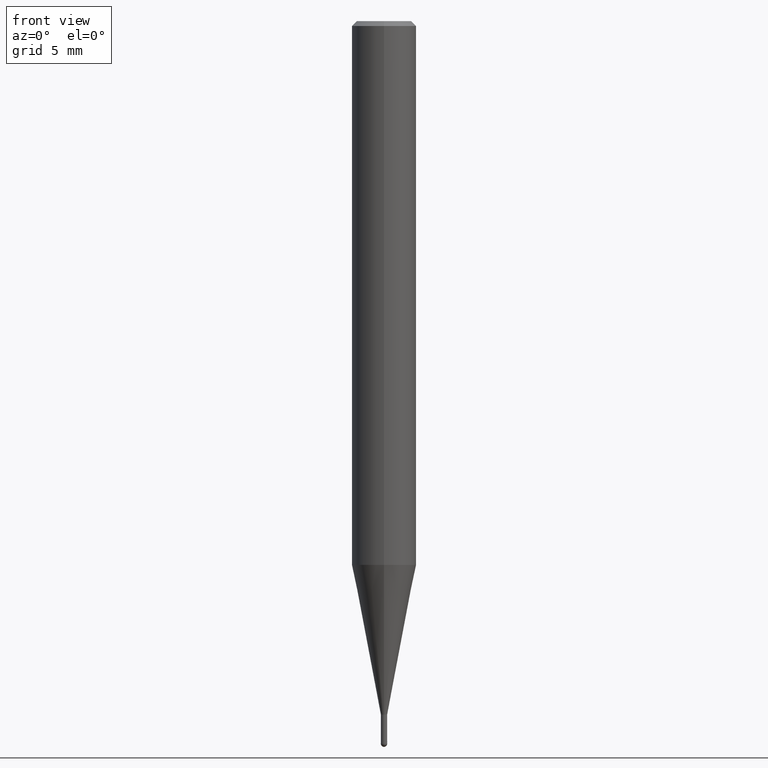
[diagram: clean part render]
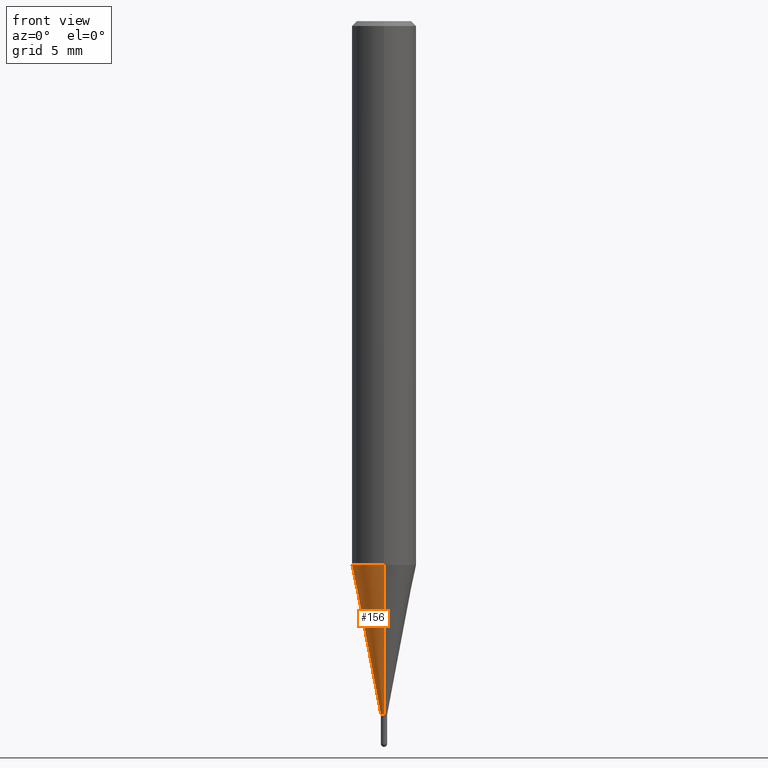
[diagram: same view with one face highlighted and labeled with its STEP entity id]
A machine part, front view. The second image highlights one B-rep face of the part: STEP entity #156.
In plain terms, the highlighted conical surface has half-angle 11 deg.
Its self-contained STEP definition (entity closure, byte-faithful):
#108=VERTEX_POINT('',#251);
#110=VERTEX_POINT('',#253);
#114=EDGE_CURVE('',#194,#108,#257,.T.);
#156=ADVANCED_FACE('',(#303),#304,.T.);
#166=EDGE_CURVE('',#194,#110,#315,.T.);
#170=EDGE_CURVE('',#190,#108,#319,.T.);
#186=EDGE_CURVE('',#110,#190,#338,.T.);
#190=VERTEX_POINT('',#343);
#194=VERTEX_POINT('',#348);
#251=CARTESIAN_POINT('',(0.0,0.19495,-43.0));
#253=CARTESIAN_POINT('',(2.44915147732706E-016,-1.99995,-33.714));
#257=CIRCLE('',#412,0.19495);
#303=FACE_OUTER_BOUND('',#470,.T.);
#304=CONICAL_SURFACE('',#471,1.09745,0.191984604054908);
#315=LINE('',#483,#484);
#319=LINE('',#491,#492);
#338=CIRCLE('',#517,1.99995);
#343=CARTESIAN_POINT('',(0.0,1.99995,-33.714));
#348=CARTESIAN_POINT('',(2.38737008677672E-017,-0.19495,-43.0));
#412=AXIS2_PLACEMENT_3D('',#582,#583,#584);
#470=EDGE_LOOP('',(#644,#645,#646,#647));
#471=AXIS2_PLACEMENT_3D('',#648,#649,#650);
#483=CARTESIAN_POINT('',(1.34394424300237E-016,-1.09745,-38.357));
#484=VECTOR('',#663,1.0);
#491=CARTESIAN_POINT('',(-1.34394424300237E-016,1.09745,-38.357));
#492=VECTOR('',#665,1.0);
#517=AXIS2_PLACEMENT_3D('',#693,#694,#695);
#582=CARTESIAN_POINT('',(0.0,0.0,-43.0));
#583=DIRECTION('',(0.0,0.0,-1.0));
#584=DIRECTION('',(0.0,1.0,0.0));
#644=ORIENTED_EDGE('',*,*,#170,.T.);
#645=ORIENTED_EDGE('',*,*,#114,.F.);
#646=ORIENTED_EDGE('',*,*,#166,.T.);
#647=ORIENTED_EDGE('',*,*,#186,.T.);
#648=CARTESIAN_POINT('',(0.0,0.0,-38.357));
#649=DIRECTION('',(-0.0,-0.0,1.0));
#650=DIRECTION('',(0.0,1.0,0.0));
#663=DIRECTION('',(2.33663968307108E-017,-0.190807411359389,0.981627491348082));
#665=DIRECTION('',(2.33663968307108E-017,-0.190807411359389,-0.981627491348082));
#693=CARTESIAN_POINT('',(0.0,0.0,-33.714));
#694=DIRECTION('',(0.0,0.0,-1.0));
#695=DIRECTION('',(0.0,1.0,0.0));